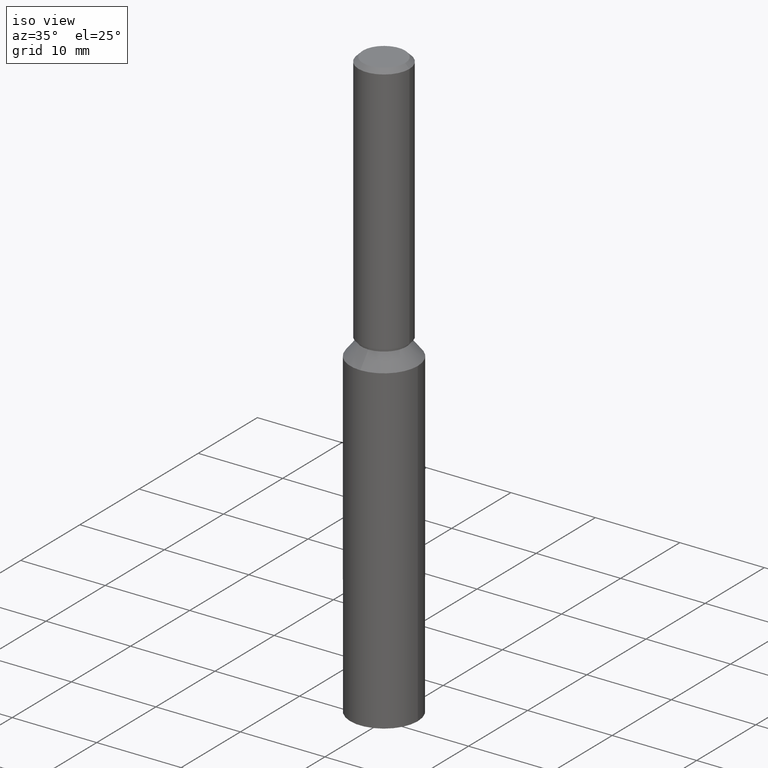
[diagram: clean part render]
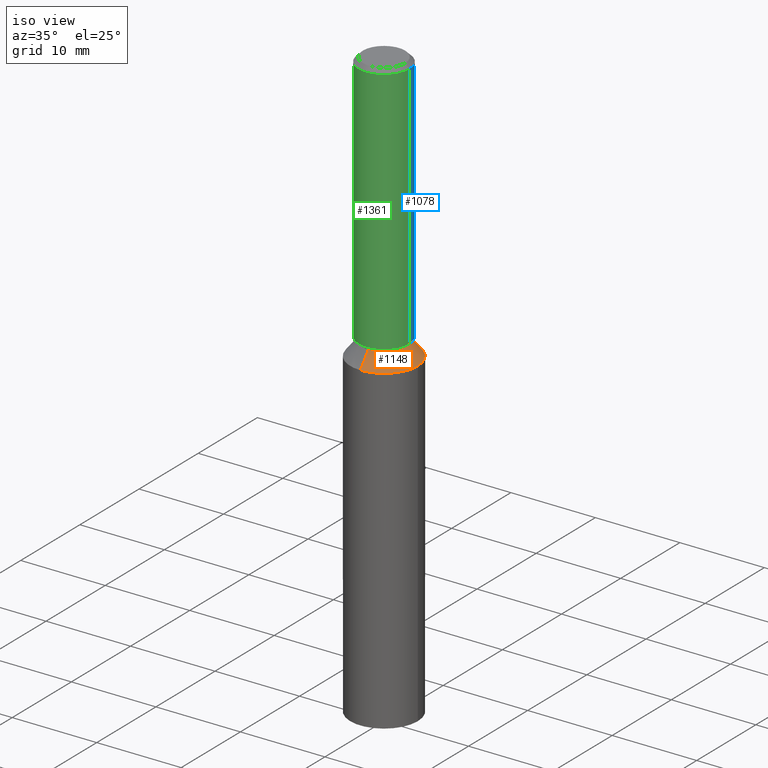
[diagram: same view with three faces highlighted in distinct colors, each labeled with its STEP entity id]
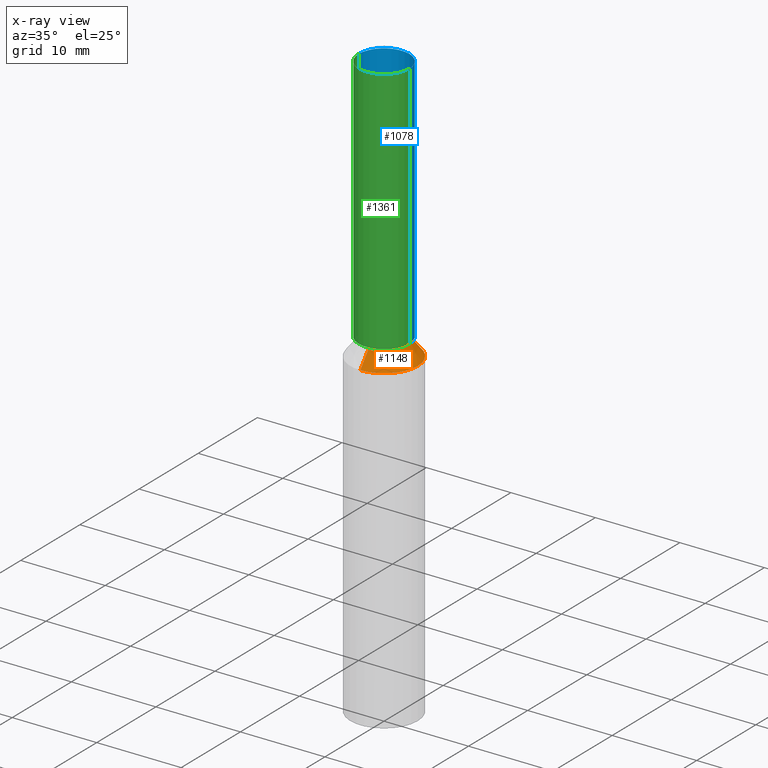
[diagram: x-ray of the same camera — body ghosted, the three highlighted faces saturated]
A machine part, iso view with three faces highlighted in distinct colors.
The next image is the same camera in x-ray (body ghosted, the three faces saturated) — at least one of them is partly hidden behind the body in this view.
Their STEP definitions:

[orange] entity #1148 — the highlighted conical surface has half-angle 38.454 deg.
#1073 = VERTEX_POINT ( 'NONE', #10138 ) ;
#1086 = EDGE_CURVE ( 'NONE', #10247, #1073, #9910, .T. ) ;
#1148 = ADVANCED_FACE ( 'NONE', ( #12247 ), #12081, .T. ) ;
#1202 = DIRECTION ( 'NONE',  ( -0.0000000000000000000, 1.967742040464204400E-018, -1.000000000000000000 ) ) ;
#1693 = VERTEX_POINT ( 'NONE', #3882 ) ;
#1960 = VERTEX_POINT ( 'NONE', #12862 ) ;
#2545 = VECTOR ( 'NONE', #7961, 1000.000000000000200 ) ;
#2627 = EDGE_CURVE ( 'NONE', #1960, #1693, #10727, .T. ) ;
#2869 = CARTESIAN_POINT ( 'NONE',  ( 0.0000000000000000000, -7.477419753763976000E-017, 38.00000000000000000 ) ) ;
#2920 = ORIENTED_EDGE ( 'NONE', *, *, #8733, .F. ) ;
#3139 = AXIS2_PLACEMENT_3D ( 'NONE', #9632, #3334, #3778 ) ;
#3264 = VECTOR ( 'NONE', #7355, 1000.000000000000200 ) ;
#3334 = DIRECTION ( 'NONE',  ( -0.0000000000000000000, 1.967742040464204400E-018, -1.000000000000000000 ) ) ;
#3340 = DIRECTION ( 'NONE',  ( 0.0000000000000000000, 1.000000000000000000, 0.0000000000000000000 ) ) ;
#3685 = ORIENTED_EDGE ( 'NONE', *, *, #2627, .T. ) ;
#3778 = DIRECTION ( 'NONE',  ( 0.0000000000000000000, 1.000000000000000000, 0.0000000000000000000 ) ) ;
#3882 = CARTESIAN_POINT ( 'NONE',  ( 3.245314017740492400E-016, -2.650000000000005200, 39.70000000000000300 ) ) ;
#3928 = DIRECTION ( 'NONE',  ( -0.0000000000000000000, 1.967742040464204400E-018, -1.000000000000000000 ) ) ;
#4247 = CARTESIAN_POINT ( 'NONE',  ( 0.0000000000000000000, -7.811935900642893000E-017, 39.70000000000000300 ) ) ;
#4756 = ORIENTED_EDGE ( 'NONE', *, *, #13168, .F. ) ;
#4862 = CARTESIAN_POINT ( 'NONE',  ( 4.898587196589419700E-016, -4.000000000000005300, 38.00000000000000000 ) ) ;
#5102 = DIRECTION ( 'NONE',  ( 0.0000000000000000000, 1.000000000000000000, 0.0000000000000000000 ) ) ;
#5649 = CIRCLE ( 'NONE', #11068, 4.000000000000005300 ) ;
#5852 = CARTESIAN_POINT ( 'NONE',  ( 4.000000000000005300, 4.898587196589420700E-016, 38.00000000000000000 ) ) ;
#5959 = DIRECTION ( 'NONE',  ( -0.0000000000000000000, 1.967742040464204400E-018, -1.000000000000000000 ) ) ;
#6020 = AXIS2_PLACEMENT_3D ( 'NONE', #2869, #3928, #11308 ) ;
#6370 = EDGE_LOOP ( 'NONE', ( #3685, #6434, #11241, #4756, #2920 ) ) ;
#6434 = ORIENTED_EDGE ( 'NONE', *, *, #12995, .T. ) ;
#7355 = DIRECTION ( 'NONE',  ( 0.0000000000000000000, 0.6218821436015845600, -0.7831108474982950700 ) ) ;
#7961 = DIRECTION ( 'NONE',  ( 7.615859766085753400E-017, -0.6218821436015845600, -0.7831108474982950700 ) ) ;
#8138 = CARTESIAN_POINT ( 'NONE',  ( 0.0000000000000000000, -7.477419753763976000E-017, 38.00000000000000000 ) ) ;
#8733 = EDGE_CURVE ( 'NONE', #1960, #12210, #12858, .T. ) ;
#9413 = AXIS2_PLACEMENT_3D ( 'NONE', #4247, #1202, #3340 ) ;
#9614 = LINE ( 'NONE', #4862, #2545 ) ;
#9632 = CARTESIAN_POINT ( 'NONE',  ( 0.0000000000000000000, -7.477419753763976000E-017, 38.00000000000000000 ) ) ;
#9910 = CIRCLE ( 'NONE', #6020, 4.000000000000005300 ) ;
#10138 = CARTESIAN_POINT ( 'NONE',  ( 4.898587196589419700E-016, -4.000000000000005300, 38.00000000000000000 ) ) ;
#10247 = VERTEX_POINT ( 'NONE', #5852 ) ;
#10727 = CIRCLE ( 'NONE', #9413, 2.650000000000005200 ) ;
#11068 = AXIS2_PLACEMENT_3D ( 'NONE', #8138, #5959, #5102 ) ;
#11241 = ORIENTED_EDGE ( 'NONE', *, *, #1086, .F. ) ;
#11308 = DIRECTION ( 'NONE',  ( 0.0000000000000000000, 1.000000000000000000, 0.0000000000000000000 ) ) ;
#11454 = CARTESIAN_POINT ( 'NONE',  ( 0.0000000000000000000, 4.000000000000005300, 38.00000000000000000 ) ) ;
#11529 = CARTESIAN_POINT ( 'NONE',  ( 0.0000000000000000000, 4.000000000000005300, 38.00000000000000000 ) ) ;
#12081 = CONICAL_SURFACE ( 'NONE', #3139, 4.000000000000005300, 0.6711438354360067500 ) ;
#12210 = VERTEX_POINT ( 'NONE', #11454 ) ;
#12247 = FACE_OUTER_BOUND ( 'NONE', #6370, .T. ) ;
#12858 = LINE ( 'NONE', #11529, #3264 ) ;
#12862 = CARTESIAN_POINT ( 'NONE',  ( 0.0000000000000000000, 2.650000000000005200, 39.70000000000000300 ) ) ;
#12995 = EDGE_CURVE ( 'NONE', #1693, #1073, #9614, .T. ) ;
#13168 = EDGE_CURVE ( 'NONE', #12210, #10247, #5649, .T. ) ;

[blue] entity #1078 — the highlighted cylindrical surface (edge-blend (fillet) strip) has radius 3 mm, axis along (-0, -0, -1).
#645 = CIRCLE ( 'NONE', #3722, 3.000000000000000400 ) ;
#647 = VERTEX_POINT ( 'NONE', #11277 ) ;
#822 = FACE_OUTER_BOUND ( 'NONE', #8377, .T. ) ;
#1078 = ADVANCED_FACE ( 'NONE', ( #822 ), #13386, .T. ) ;
#1496 = LINE ( 'NONE', #6621, #12578 ) ;
#1805 = DIRECTION ( 'NONE',  ( -1.000000000000000000, 0.0000000000000000000, 0.0000000000000000000 ) ) ;
#2194 = ORIENTED_EDGE ( 'NONE', *, *, #5151, .T. ) ;
#3357 = EDGE_CURVE ( 'NONE', #6702, #13127, #1496, .T. ) ;
#3722 = AXIS2_PLACEMENT_3D ( 'NONE', #10098, #8023, #9495 ) ;
#3955 = ORIENTED_EDGE ( 'NONE', *, *, #3357, .F. ) ;
#4556 = EDGE_CURVE ( 'NONE', #7056, #647, #7248, .T. ) ;
#4759 = CIRCLE ( 'NONE', #13146, 3.000000000000000400 ) ;
#5151 = EDGE_CURVE ( 'NONE', #6702, #7056, #4759, .T. ) ;
#6097 = CARTESIAN_POINT ( 'NONE',  ( 0.0000000000000000000, 0.0000000000000000000, 69.49999999999998600 ) ) ;
#6249 = VECTOR ( 'NONE', #10747, 1000.000000000000000 ) ;
#6621 = CARTESIAN_POINT ( 'NONE',  ( -3.000000000000000400, 0.0000000000000000000, 70.00000000000000000 ) ) ;
#6702 = VERTEX_POINT ( 'NONE', #11931 ) ;
#7056 = VERTEX_POINT ( 'NONE', #13601 ) ;
#7248 = LINE ( 'NONE', #11826, #6249 ) ;
#8023 = DIRECTION ( 'NONE',  ( -0.0000000000000000000, 1.967742040464204400E-018, -1.000000000000000000 ) ) ;
#8078 = AXIS2_PLACEMENT_3D ( 'NONE', #11216, #8114, #1805 ) ;
#8114 = DIRECTION ( 'NONE',  ( -0.0000000000000000000, -0.0000000000000000000, -1.000000000000000000 ) ) ;
#8377 = EDGE_LOOP ( 'NONE', ( #2194, #9290, #12174, #3955 ) ) ;
#8917 = EDGE_CURVE ( 'NONE', #13127, #647, #645, .T. ) ;
#9281 = DIRECTION ( 'NONE',  ( 0.0000000000000000000, 0.0000000000000000000, -1.000000000000000000 ) ) ;
#9290 = ORIENTED_EDGE ( 'NONE', *, *, #4556, .T. ) ;
#9495 = DIRECTION ( 'NONE',  ( 0.0000000000000000000, 1.000000000000000000, 0.0000000000000000000 ) ) ;
#9765 = DIRECTION ( 'NONE',  ( -0.0000000000000000000, -0.0000000000000000000, -1.000000000000000000 ) ) ;
#10098 = CARTESIAN_POINT ( 'NONE',  ( 0.0000000000000000000, 0.0000000000000000000, 40.10000000000000100 ) ) ;
#10747 = DIRECTION ( 'NONE',  ( -0.0000000000000000000, -0.0000000000000000000, -1.000000000000000000 ) ) ;
#11216 = CARTESIAN_POINT ( 'NONE',  ( 0.0000000000000000000, 0.0000000000000000000, 70.00000000000000000 ) ) ;
#11277 = CARTESIAN_POINT ( 'NONE',  ( 3.000000000000000400, 3.673940397442060400E-016, 40.10000000000000100 ) ) ;
#11826 = CARTESIAN_POINT ( 'NONE',  ( 3.000000000000000400, 3.673940397442060400E-016, 70.00000000000000000 ) ) ;
#11931 = CARTESIAN_POINT ( 'NONE',  ( -3.000000000000000400, 0.0000000000000000000, 69.49999999999998600 ) ) ;
#12174 = ORIENTED_EDGE ( 'NONE', *, *, #8917, .F. ) ;
#12354 = DIRECTION ( 'NONE',  ( 1.000000000000000000, 0.0000000000000000000, 0.0000000000000000000 ) ) ;
#12578 = VECTOR ( 'NONE', #9765, 1000.000000000000000 ) ;
#13127 = VERTEX_POINT ( 'NONE', #13363 ) ;
#13146 = AXIS2_PLACEMENT_3D ( 'NONE', #6097, #9281, #12354 ) ;
#13363 = CARTESIAN_POINT ( 'NONE',  ( -3.000000000000000400, 0.0000000000000000000, 40.10000000000000100 ) ) ;
#13386 = CYLINDRICAL_SURFACE ( 'NONE', #8078, 3.000000000000000400 ) ;
#13601 = CARTESIAN_POINT ( 'NONE',  ( 3.000000000000000400, 3.673940397442060400E-016, 69.49999999999998600 ) ) ;

[green] entity #1361 — the highlighted cylindrical surface (edge-blend (fillet) strip) has radius 3 mm, axis along (-0, -0, -1).
#372 = ORIENTED_EDGE ( 'NONE', *, *, #4556, .F. ) ;
#647 = VERTEX_POINT ( 'NONE', #11277 ) ;
#869 = DIRECTION ( 'NONE',  ( 1.000000000000000000, 0.0000000000000000000, 0.0000000000000000000 ) ) ;
#1361 = ADVANCED_FACE ( 'NONE', ( #6443 ), #8913, .T. ) ;
#1443 = CARTESIAN_POINT ( 'NONE',  ( 0.0000000000000000000, 0.0000000000000000000, 70.00000000000000000 ) ) ;
#1496 = LINE ( 'NONE', #6621, #12578 ) ;
#1602 = ORIENTED_EDGE ( 'NONE', *, *, #4632, .T. ) ;
#3357 = EDGE_CURVE ( 'NONE', #6702, #13127, #1496, .T. ) ;
#4556 = EDGE_CURVE ( 'NONE', #7056, #647, #7248, .T. ) ;
#4632 = EDGE_CURVE ( 'NONE', #7056, #6702, #12389, .T. ) ;
#5127 = CARTESIAN_POINT ( 'NONE',  ( 0.0000000000000000000, 0.0000000000000000000, 40.10000000000000100 ) ) ;
#5784 = AXIS2_PLACEMENT_3D ( 'NONE', #10324, #9175, #869 ) ;
#6249 = VECTOR ( 'NONE', #10747, 1000.000000000000000 ) ;
#6443 = FACE_OUTER_BOUND ( 'NONE', #7032, .T. ) ;
#6621 = CARTESIAN_POINT ( 'NONE',  ( -3.000000000000000400, 0.0000000000000000000, 70.00000000000000000 ) ) ;
#6690 = DIRECTION ( 'NONE',  ( -0.0000000000000000000, -0.0000000000000000000, -1.000000000000000000 ) ) ;
#6702 = VERTEX_POINT ( 'NONE', #11931 ) ;
#7032 = EDGE_LOOP ( 'NONE', ( #372, #1602, #11969, #8943 ) ) ;
#7056 = VERTEX_POINT ( 'NONE', #13601 ) ;
#7248 = LINE ( 'NONE', #11826, #6249 ) ;
#7804 = DIRECTION ( 'NONE',  ( -1.000000000000000000, 0.0000000000000000000, 0.0000000000000000000 ) ) ;
#8913 = CYLINDRICAL_SURFACE ( 'NONE', #12608, 3.000000000000000400 ) ;
#8943 = ORIENTED_EDGE ( 'NONE', *, *, #13588, .F. ) ;
#9175 = DIRECTION ( 'NONE',  ( 0.0000000000000000000, 0.0000000000000000000, -1.000000000000000000 ) ) ;
#9181 = DIRECTION ( 'NONE',  ( -0.0000000000000000000, 1.967742040464204400E-018, -1.000000000000000000 ) ) ;
#9765 = DIRECTION ( 'NONE',  ( -0.0000000000000000000, -0.0000000000000000000, -1.000000000000000000 ) ) ;
#9828 = AXIS2_PLACEMENT_3D ( 'NONE', #5127, #9181, #12482 ) ;
#10324 = CARTESIAN_POINT ( 'NONE',  ( 0.0000000000000000000, 0.0000000000000000000, 69.49999999999998600 ) ) ;
#10439 = CIRCLE ( 'NONE', #9828, 3.000000000000000400 ) ;
#10747 = DIRECTION ( 'NONE',  ( -0.0000000000000000000, -0.0000000000000000000, -1.000000000000000000 ) ) ;
#11277 = CARTESIAN_POINT ( 'NONE',  ( 3.000000000000000400, 3.673940397442060400E-016, 40.10000000000000100 ) ) ;
#11826 = CARTESIAN_POINT ( 'NONE',  ( 3.000000000000000400, 3.673940397442060400E-016, 70.00000000000000000 ) ) ;
#11931 = CARTESIAN_POINT ( 'NONE',  ( -3.000000000000000400, 0.0000000000000000000, 69.49999999999998600 ) ) ;
#11969 = ORIENTED_EDGE ( 'NONE', *, *, #3357, .T. ) ;
#12389 = CIRCLE ( 'NONE', #5784, 3.000000000000000400 ) ;
#12482 = DIRECTION ( 'NONE',  ( 0.0000000000000000000, 1.000000000000000000, 0.0000000000000000000 ) ) ;
#12578 = VECTOR ( 'NONE', #9765, 1000.000000000000000 ) ;
#12608 = AXIS2_PLACEMENT_3D ( 'NONE', #1443, #6690, #7804 ) ;
#13127 = VERTEX_POINT ( 'NONE', #13363 ) ;
#13363 = CARTESIAN_POINT ( 'NONE',  ( -3.000000000000000400, 0.0000000000000000000, 40.10000000000000100 ) ) ;
#13588 = EDGE_CURVE ( 'NONE', #647, #13127, #10439, .T. ) ;
#13601 = CARTESIAN_POINT ( 'NONE',  ( 3.000000000000000400, 3.673940397442060400E-016, 69.49999999999998600 ) ) ;